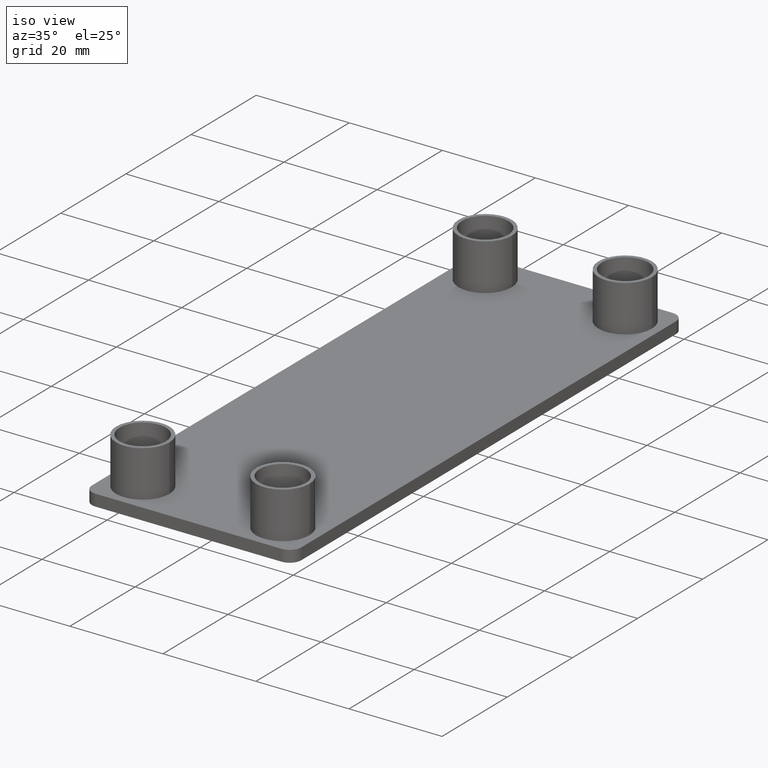
[diagram: clean part render]
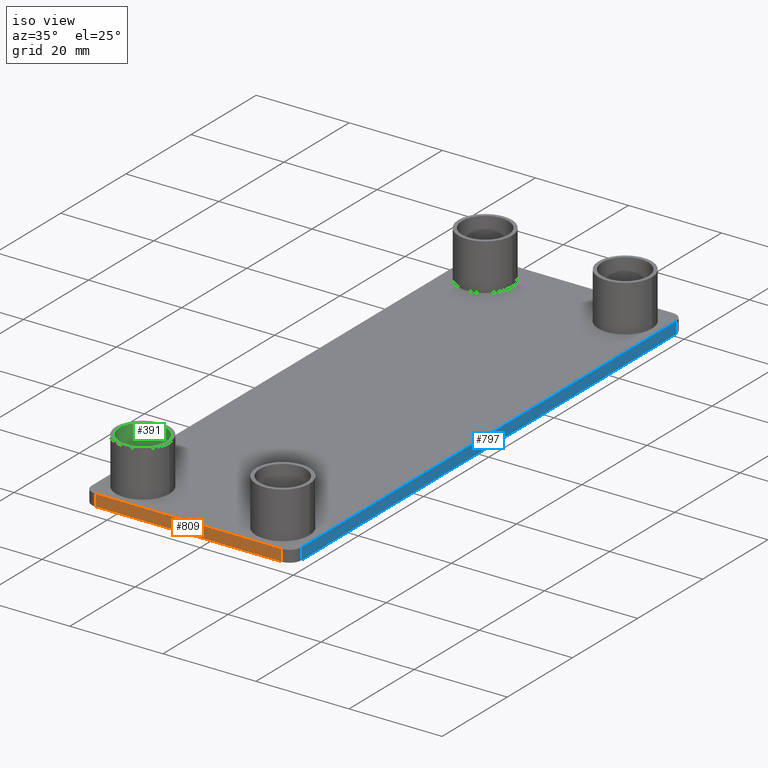
[diagram: same view with three faces highlighted in distinct colors, each labeled with its STEP entity id]
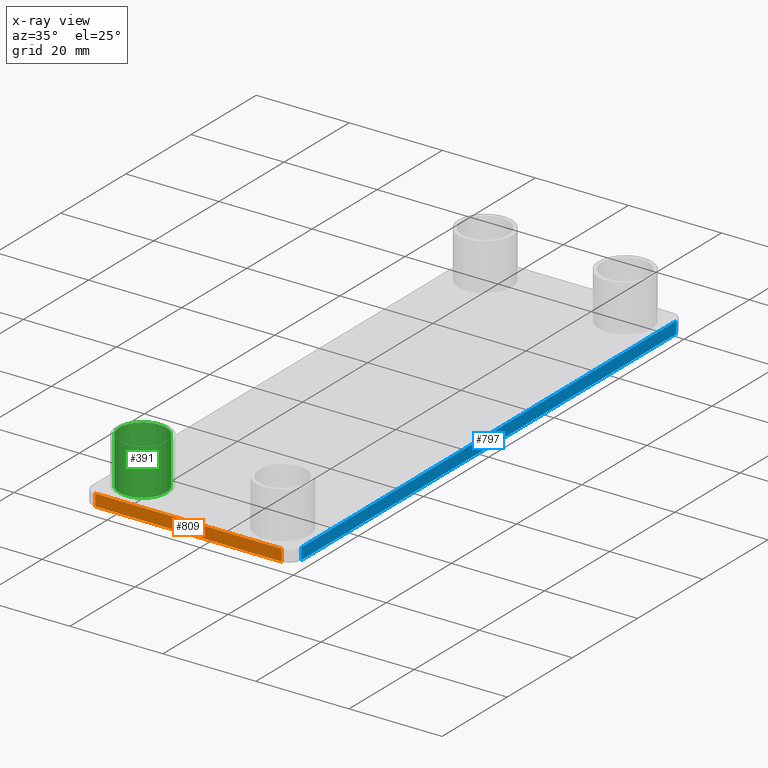
[diagram: x-ray of the same camera — body ghosted, the three highlighted faces saturated]
A machine part, iso view with three faces highlighted in distinct colors.
The next image is the same camera in x-ray (body ghosted, the three faces saturated) — at least one of them is partly hidden behind the body in this view.
Their STEP definitions:

[orange] entity #809 — the highlighted planar face has unit normal (0, 1, 0).
#511=CARTESIAN_POINT('',(-42.499953999819809,-60.000000499759835,-2.500000000000000));
#512=VERTEX_POINT('',#511);
#564=CARTESIAN_POINT('',(-2.500000000000000,-60.000000499759835,-2.500000000000000));
#565=VERTEX_POINT('',#564);
#573=CARTESIAN_POINT('',(-42.499953999819809,-60.000000499759835,-2.500000000000000));
#574=DIRECTION('',(1.0,0.0,0.0));
#575=VECTOR('',#574,39.999953999819809);
#576=LINE('',#573,#575);
#577=EDGE_CURVE('',#512,#565,#576,.T.);
#619=CARTESIAN_POINT('',(-42.499953999819809,-60.000000499759835,0.0));
#620=VERTEX_POINT('',#619);
#621=CARTESIAN_POINT('',(-2.500000000000000,-60.000000499759835,0.0));
#622=VERTEX_POINT('',#621);
#623=CARTESIAN_POINT('',(-42.499953999819809,-60.000000499759835,0.0));
#624=DIRECTION('',(1.0,0.0,0.0));
#625=VECTOR('',#624,39.999953999819809);
#626=LINE('',#623,#625);
#627=EDGE_CURVE('',#620,#622,#626,.T.);
#731=CARTESIAN_POINT('',(-42.499953999819809,-60.000000499759835,0.0));
#732=DIRECTION('',(0.0,0.0,-1.0));
#733=VECTOR('',#732,2.500000000000000);
#734=LINE('',#731,#733);
#735=EDGE_CURVE('',#620,#512,#734,.T.);
#746=CARTESIAN_POINT('',(-2.500000000000000,-60.000000499759835,0.0));
#747=DIRECTION('',(0.0,0.0,-1.0));
#748=VECTOR('',#747,2.500000000000000);
#749=LINE('',#746,#748);
#750=EDGE_CURVE('',#622,#565,#749,.T.);
#798=CARTESIAN_POINT('',(-44.999953999819809,-60.000000499759835,0.0));
#799=DIRECTION('',(0.0,1.0,0.0));
#800=DIRECTION('',(1.0,0.0,0.0));
#801=AXIS2_PLACEMENT_3D('',#798,#799,#800);
#802=PLANE('',#801);
#803=ORIENTED_EDGE('',*,*,#627,.F.);
#804=ORIENTED_EDGE('',*,*,#735,.T.);
#805=ORIENTED_EDGE('',*,*,#577,.T.);
#806=ORIENTED_EDGE('',*,*,#750,.F.);
#807=EDGE_LOOP('',(#803,#804,#805,#806));
#808=FACE_OUTER_BOUND('',#807,.T.);
#809=ADVANCED_FACE('',(#808),#802,.F.);

[blue] entity #797 — the highlighted planar face has unit normal (-1, 0, 0).
#547=CARTESIAN_POINT('',(0.0,57.500000499760063,-2.500000000000000));
#548=VERTEX_POINT('',#547);
#556=CARTESIAN_POINT('',(0.0,-57.500000499759835,-2.500000000000000));
#557=VERTEX_POINT('',#556);
#558=CARTESIAN_POINT('',(0.0,-57.500000499759835,-2.500000000000000));
#559=DIRECTION('',(0.0,1.0,0.0));
#560=VECTOR('',#559,115.000000999519900);
#561=LINE('',#558,#560);
#562=EDGE_CURVE('',#557,#548,#561,.T.);
#629=CARTESIAN_POINT('',(0.0,-57.500000499759835,0.0));
#630=VERTEX_POINT('',#629);
#638=CARTESIAN_POINT('',(0.0,57.500000499760063,0.0));
#639=VERTEX_POINT('',#638);
#640=CARTESIAN_POINT('',(0.0,-57.500000499759835,0.0));
#641=DIRECTION('',(0.0,1.0,0.0));
#642=VECTOR('',#641,115.000000999519900);
#643=LINE('',#640,#642);
#644=EDGE_CURVE('',#630,#639,#643,.T.);
#702=CARTESIAN_POINT('',(0.0,57.500000499760063,0.0));
#703=DIRECTION('',(0.0,0.0,-1.0));
#704=VECTOR('',#703,2.500000000000000);
#705=LINE('',#702,#704);
#706=EDGE_CURVE('',#639,#548,#705,.T.);
#753=CARTESIAN_POINT('',(0.0,-57.500000499759835,0.0));
#754=DIRECTION('',(0.0,0.0,-1.0));
#755=VECTOR('',#754,2.500000000000000);
#756=LINE('',#753,#755);
#757=EDGE_CURVE('',#630,#557,#756,.T.);
#786=CARTESIAN_POINT('',(0.0,-60.000000499759835,0.0));
#787=DIRECTION('',(-1.0,0.0,0.0));
#788=DIRECTION('',(0.0,1.0,0.0));
#789=AXIS2_PLACEMENT_3D('',#786,#787,#788);
#790=PLANE('',#789);
#791=ORIENTED_EDGE('',*,*,#757,.T.);
#792=ORIENTED_EDGE('',*,*,#562,.T.);
#793=ORIENTED_EDGE('',*,*,#706,.F.);
#794=ORIENTED_EDGE('',*,*,#644,.F.);
#795=EDGE_LOOP('',(#791,#792,#793,#794));
#796=FACE_OUTER_BOUND('',#795,.T.);
#797=ADVANCED_FACE('',(#796),#790,.F.);

[green] entity #391 — the highlighted cylindrical surface (bore or boss wall) has radius 5 mm, axis along (0, 0, -1).
#33=CARTESIAN_POINT('',(-42.549998999829320,-52.550044499789919,0.0));
#34=VERTEX_POINT('',#33);
#35=CARTESIAN_POINT('',(-32.549998999869331,-52.550044499789919,0.0));
#36=VERTEX_POINT('',#35);
#37=CARTESIAN_POINT('',(-37.549998999849322,-52.550044499789919,0.0));
#38=DIRECTION('',(0.0,0.0,-1.0));
#39=DIRECTION('',(1.0,0.0,0.0));
#40=AXIS2_PLACEMENT_3D('',#37,#38,#39);
#41=CIRCLE('',#40,4.999999999980001);
#42=EDGE_CURVE('',#34,#36,#41,.T.);
#44=CARTESIAN_POINT('',(-37.549998999849322,-52.550044499789919,0.0));
#45=DIRECTION('',(0.0,0.0,-1.0));
#46=DIRECTION('',(1.0,0.0,0.0));
#47=AXIS2_PLACEMENT_3D('',#44,#45,#46);
#48=CIRCLE('',#47,4.999999999980001);
#49=EDGE_CURVE('',#36,#34,#48,.T.);
#357=CARTESIAN_POINT('',(-37.549998999849322,-52.550044499789919,0.0));
#358=DIRECTION('',(0.0,0.0,-1.0));
#359=DIRECTION('',(1.0,-2.449294E-016,0.0));
#360=AXIS2_PLACEMENT_3D('',#357,#358,#359);
#361=CYLINDRICAL_SURFACE('',#360,4.999999999980001);
#362=CARTESIAN_POINT('',(-42.549998999829320,-52.550044499789919,10.0));
#363=VERTEX_POINT('',#362);
#364=CARTESIAN_POINT('',(-32.549998999869331,-52.550044499789919,10.0));
#365=VERTEX_POINT('',#364);
#366=CARTESIAN_POINT('',(-37.549998999849322,-52.550044499789919,10.0));
#367=DIRECTION('',(0.0,0.0,-1.0));
#368=DIRECTION('',(1.0,0.0,0.0));
#369=AXIS2_PLACEMENT_3D('',#366,#367,#368);
#370=CIRCLE('',#369,4.999999999980001);
#371=EDGE_CURVE('',#363,#365,#370,.T.);
#372=ORIENTED_EDGE('',*,*,#371,.F.);
#373=CARTESIAN_POINT('',(-37.549998999849322,-52.550044499789919,10.0));
#374=DIRECTION('',(0.0,0.0,-1.0));
#375=DIRECTION('',(1.0,0.0,0.0));
#376=AXIS2_PLACEMENT_3D('',#373,#374,#375);
#377=CIRCLE('',#376,4.999999999980001);
#378=EDGE_CURVE('',#365,#363,#377,.T.);
#379=ORIENTED_EDGE('',*,*,#378,.F.);
#380=CARTESIAN_POINT('',(-32.549998999869331,-52.550044499789919,0.0));
#381=DIRECTION('',(0.0,0.0,1.0));
#382=VECTOR('',#381,10.0);
#383=LINE('',#380,#382);
#384=EDGE_CURVE('',#36,#365,#383,.T.);
#385=ORIENTED_EDGE('',*,*,#384,.F.);
#386=ORIENTED_EDGE('',*,*,#49,.T.);
#387=ORIENTED_EDGE('',*,*,#42,.T.);
#388=ORIENTED_EDGE('',*,*,#384,.T.);
#389=EDGE_LOOP('',(#372,#379,#385,#386,#387,#388));
#390=FACE_OUTER_BOUND('',#389,.T.);
#391=ADVANCED_FACE('',(#390),#361,.F.);